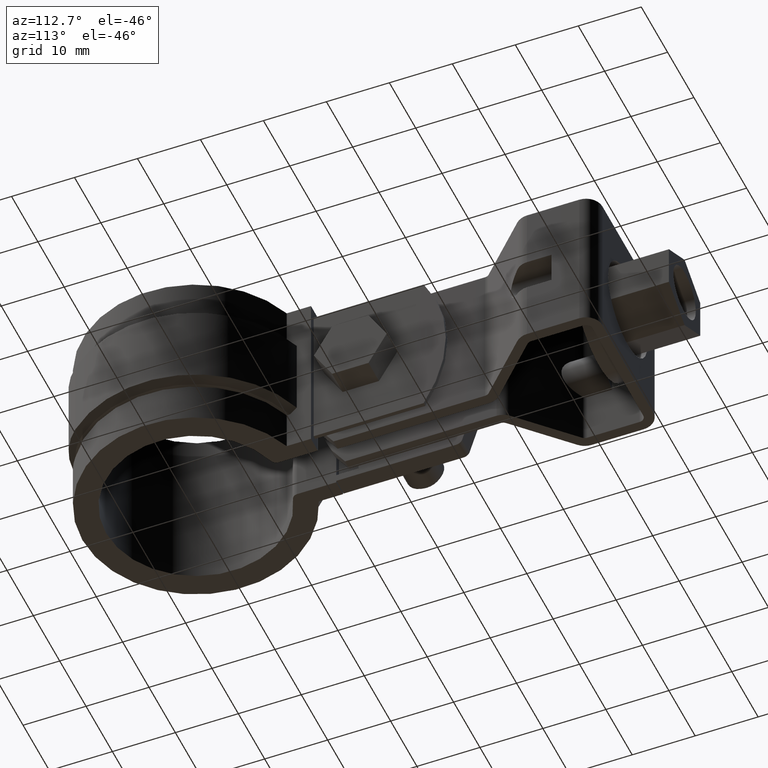
[diagram: clean part render]
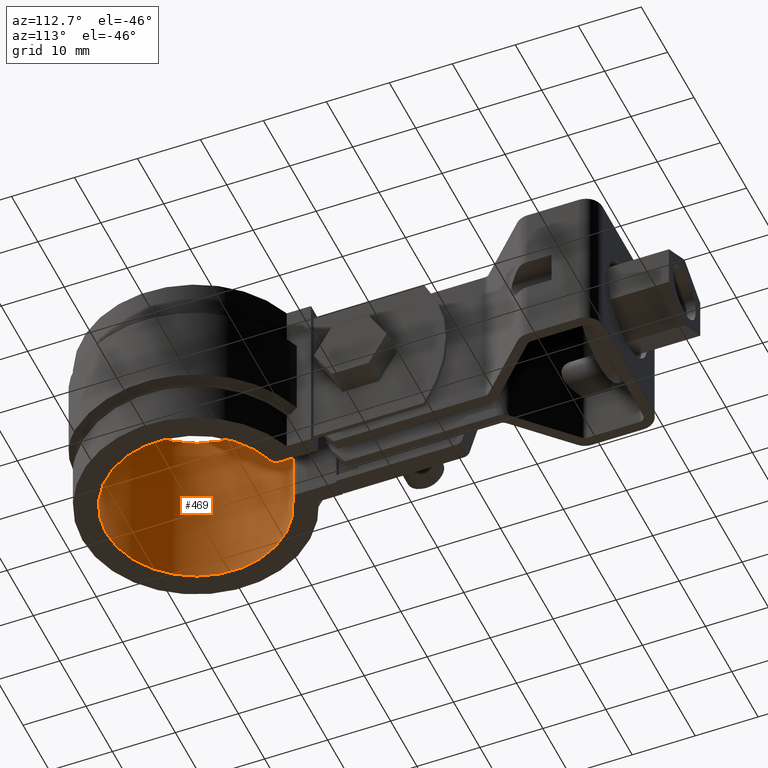
[diagram: same view with one face highlighted and labeled with its STEP entity id]
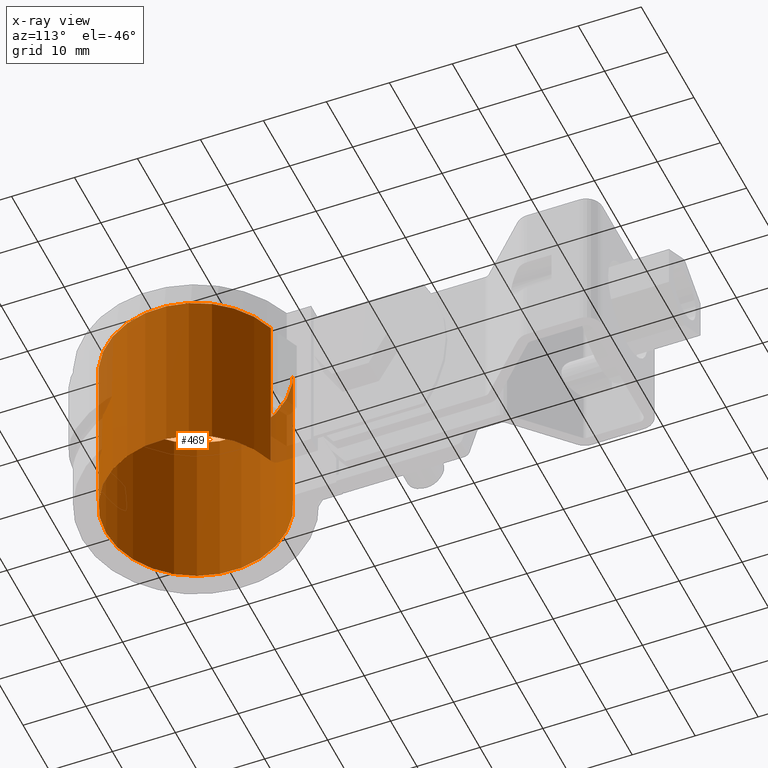
[diagram: x-ray of the same camera — body ghosted, the highlighted face saturated]
A machine part, auxiliary view. The second image highlights one B-rep face of the part: STEP entity #469.
The next image is the same camera in x-ray: the body ghosted, the highlighted face saturated — about 5% of this face is hidden behind the body in this view.
In plain terms, the highlighted cylindrical surface (partial cylindrical patch) has radius 14.29 mm, axis along (0, 0, -1).
Its self-contained STEP definition (entity closure, byte-faithful):
#469 = ADVANCED_FACE( '', ( #908 ), #909, .F. );
#908 = FACE_OUTER_BOUND( '', #2045, .T. );
#909 = CYLINDRICAL_SURFACE( '', #2046, 14.2900000000000 );
#2045 = EDGE_LOOP( '', ( #4637, #4638, #4639, #4640 ) );
#2046 = AXIS2_PLACEMENT_3D( '', #4641, #4642, #4643 );
#4637 = ORIENTED_EDGE( '', *, *, #6594, .F. );
#4638 = ORIENTED_EDGE( '', *, *, #6791, .T. );
#4639 = ORIENTED_EDGE( '', *, *, #6743, .T. );
#4640 = ORIENTED_EDGE( '', *, *, #6792, .T. );
#4641 = CARTESIAN_POINT( '', ( 0.000000000000000, 0.000000000000000, -66.3855786604734 ) );
#4642 = DIRECTION( '', ( 0.000000000000000, 0.000000000000000, -1.00000000000000 ) );
#4643 = DIRECTION( '', ( -1.00000000000000, 0.000000000000000, 0.000000000000000 ) );
#6594 = EDGE_CURVE( '', #7598, #7600, #7601, .F. );
#6743 = EDGE_CURVE( '', #7856, #7854, #7857, .F. );
#6791 = EDGE_CURVE( '', #7598, #7856, #7928, .T. );
#6792 = EDGE_CURVE( '', #7854, #7600, #7929, .F. );
#7598 = VERTEX_POINT( '', #9843 );
#7600 = VERTEX_POINT( '', #9845 );
#7601 = CIRCLE( '', #9846, 14.2900000000000 );
#7854 = VERTEX_POINT( '', #10847 );
#7856 = VERTEX_POINT( '', #10849 );
#7857 = CIRCLE( '', #10850, 14.2900000000000 );
#7928 = LINE( '', #10960, #10961 );
#7929 = LINE( '', #10962, #10963 );
#9843 = CARTESIAN_POINT( '', ( -4.20568999345978, 13.6570960192463, -26.5000000000000 ) );
#9845 = CARTESIAN_POINT( '', ( 4.20568999345977, 13.6570960192463, -26.5000000000000 ) );
#9846 = AXIS2_PLACEMENT_3D( '', #12601, #12602, #12603 );
#10847 = CARTESIAN_POINT( '', ( 4.20568999345978, 13.6570960192463, 1.50000000000000 ) );
#10849 = CARTESIAN_POINT( '', ( -4.20568999345978, 13.6570960192463, 1.50000000000000 ) );
#10850 = AXIS2_PLACEMENT_3D( '', #12758, #12759, #12760 );
#10960 = CARTESIAN_POINT( '', ( -4.20568999345978, 13.6570960192463, -66.3855786604734 ) );
#10961 = VECTOR( '', #12842, 1000.00000000000 );
#10962 = CARTESIAN_POINT( '', ( 4.20568999345977, 13.6570960192463, -66.3855786604734 ) );
#10963 = VECTOR( '', #12843, 1000.00000000000 );
#12601 = CARTESIAN_POINT( '', ( 0.000000000000000, 0.000000000000000, -26.5000000000000 ) );
#12602 = DIRECTION( '', ( 0.000000000000000, 0.000000000000000, -1.00000000000000 ) );
#12603 = DIRECTION( '', ( -1.00000000000000, 0.000000000000000, 0.000000000000000 ) );
#12758 = CARTESIAN_POINT( '', ( 0.000000000000000, 0.000000000000000, 1.50000000000000 ) );
#12759 = DIRECTION( '', ( 0.000000000000000, 0.000000000000000, -1.00000000000000 ) );
#12760 = DIRECTION( '', ( -1.00000000000000, 0.000000000000000, 0.000000000000000 ) );
#12842 = DIRECTION( '', ( 0.000000000000000, 0.000000000000000, 1.00000000000000 ) );
#12843 = DIRECTION( '', ( 0.000000000000000, 0.000000000000000, 1.00000000000000 ) );